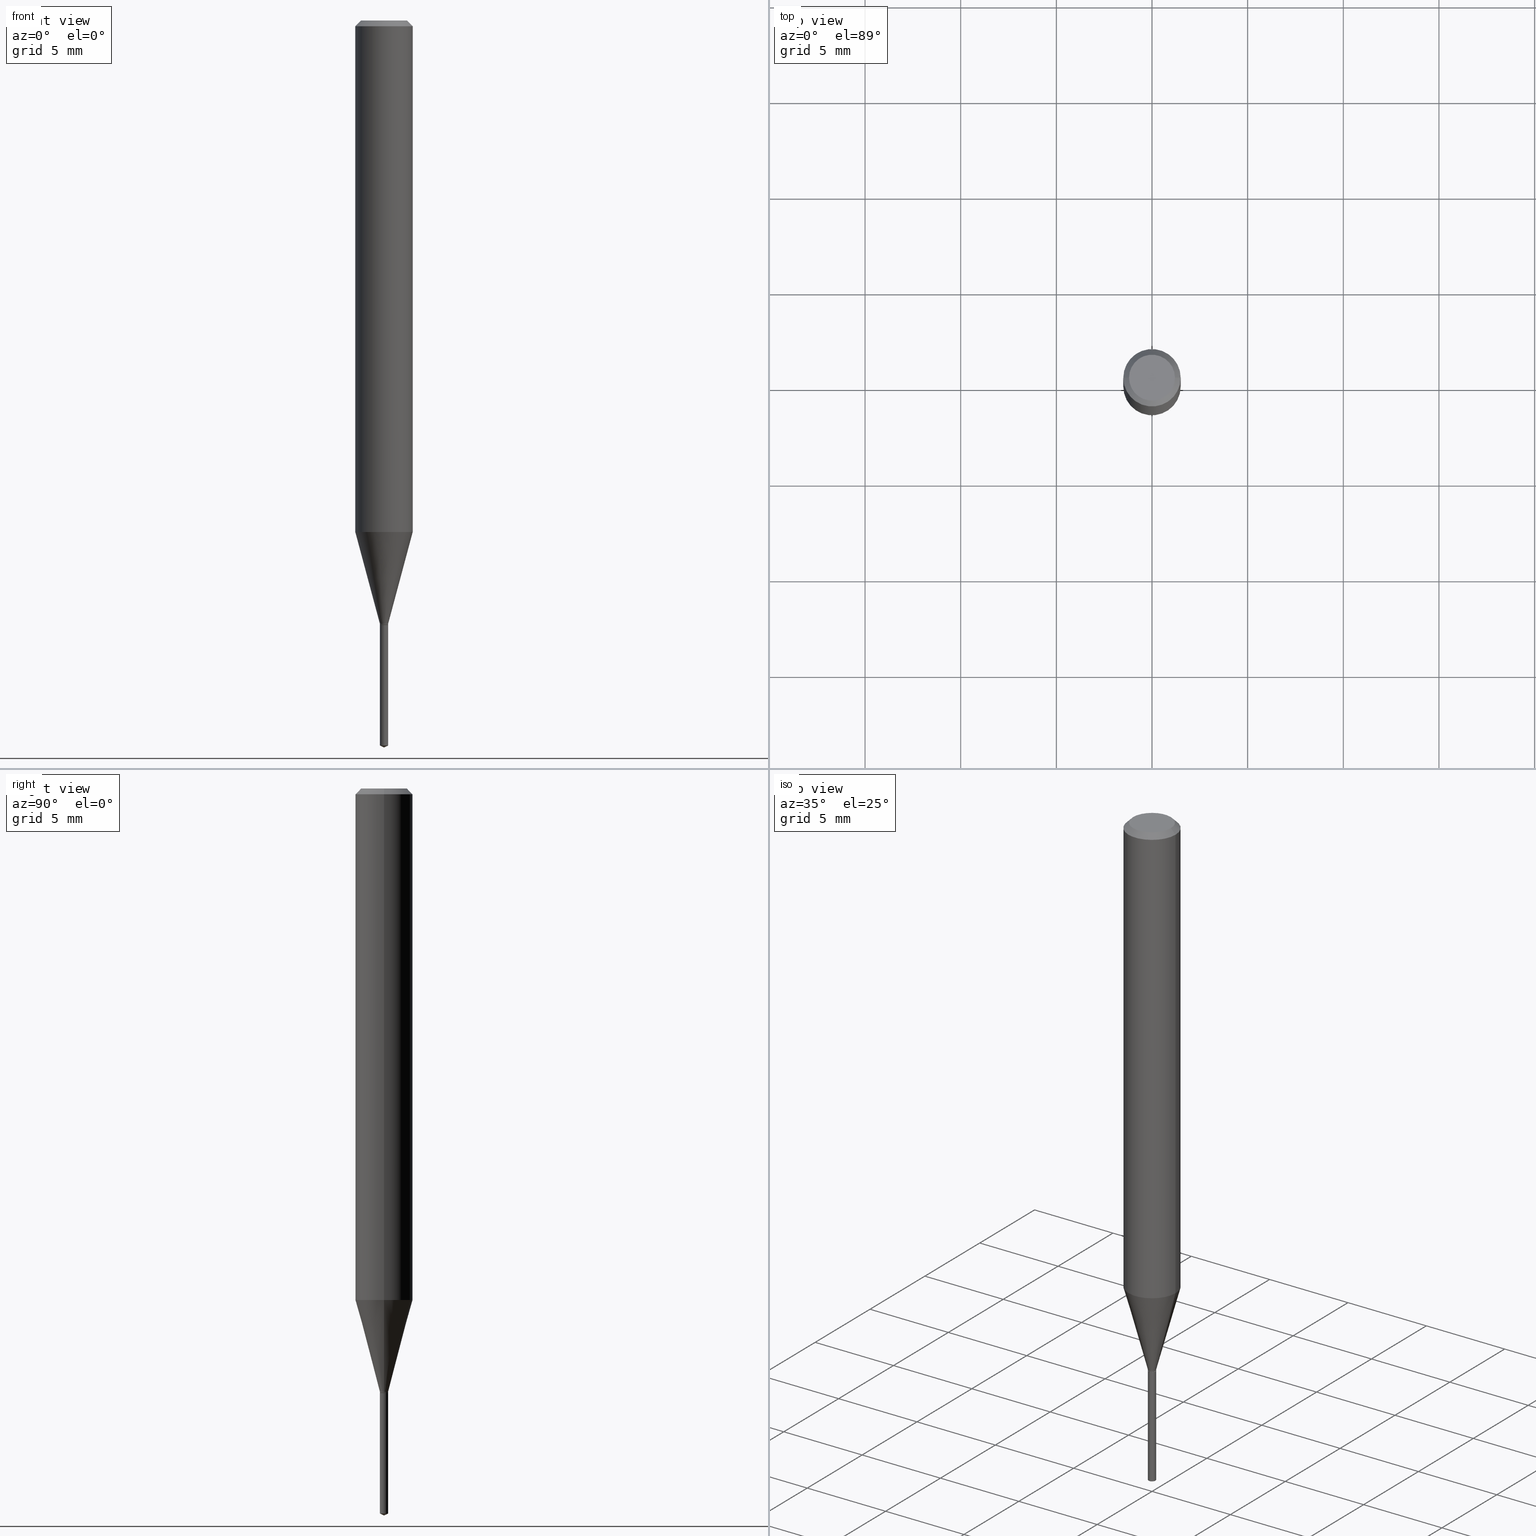
[diagram: canonical four-view strip — front | top / right | iso, engineering-drawing reading convention]
A machine part, canonical four-view strip (front | top / right | iso — engineering-drawing reading convention). The complete STEP part file that produces these views, byte-faithful:
ISO-10303-21;
HEADER;
FILE_DESCRIPTION (( 'STEP AP203' ),
    '1' );
FILE_NAME ('07418.STEP',
    '2024-04-23T21:14:15',
    ( '' ),
    ( '' ),
    'SwSTEP 2.0',
    'SolidWorks 2023',
    '' );
FILE_SCHEMA (( 'CONFIG_CONTROL_DESIGN' ));
ENDSEC;

DATA;
#1 = LINE ( 'NONE', #481, #478 ) ;
#2 = EDGE_CURVE ( 'NONE', #222, #224, #227, .T. ) ;
#3 = COORDINATED_UNIVERSAL_TIME_OFFSET ( 5, 0, .BEHIND. ) ;
#4 = LINE ( 'NONE', #89, #85 ) ;
#5 = CIRCLE ( 'NONE', #216, 0.05905000000000013710 ) ;
#6 = DIRECTION ( 'NONE',  ( 1.000000000000000000, -6.982962677686266711E-15, 0.000000000000000000 ) ) ;
#7 = DIRECTION ( 'NONE',  ( 1.000000000000000000, -6.982962677686266711E-15, 4.876176775795936353E-29 ) ) ;
#8 = EDGE_CURVE ( 'NONE', #188, #15, #1, .T. ) ;
#9 = CARTESIAN_POINT ( 'NONE',  ( 2.888098660104664204E-31, -4.123439461173780263E-17, -0.01181000000000007218 ) ) ;
#10 = AXIS2_PLACEMENT_3D ( 'NONE', #411, #74, #69 ) ;
#11 = VECTOR ( 'NONE', #360, 39.37007874015748143 ) ;
#12 = DIRECTION ( 'NONE',  ( -2.445468806185136877E-29, 3.491481338843145188E-15, 1.000000000000000000 ) ) ;
#13 = ADVANCED_FACE ( 'NONE', ( #340 ), #137, .T. ) ;
#14 = PLANE ( 'NONE',  #51 ) ;
#15 = VERTEX_POINT ( 'NONE', #193 ) ;
#16 = CARTESIAN_POINT ( 'NONE',  ( 4.132873053354867254E-48, -5.900647395337818946E-34, -1.690012582823346072E-19 ) ) ;
#17 = ORIENTED_EDGE ( 'NONE', *, *, #116, .F. ) ;
#18 = DIRECTION ( 'NONE',  ( 1.000000000000000000, -6.982962677686293532E-15, 0.000000000000000000 ) ) ;
#19 = AXIS2_PLACEMENT_3D ( 'NONE', #329, #331, #174 ) ;
#20 = VERTEX_POINT ( 'NONE', #345 ) ;
#21 = CARTESIAN_POINT ( 'NONE',  ( 3.646172489071447105E-29, -5.213939867712663588E-15, -1.492159700288590241 ) ) ;
#22 = EDGE_LOOP ( 'NONE', ( #288, #436, #323 ) ) ;
#23 = DIRECTION ( 'NONE',  ( 1.000000000000000000, -6.982962677686235156E-15, 0.000000000000000000 ) ) ;
#24 = ORIENTED_EDGE ( 'NONE', *, *, #173, .T. ) ;
#25 = ADVANCED_FACE ( 'NONE', ( #155 ), #156, .T. ) ;
#26 = DIRECTION ( 'NONE',  ( -2.433949354103485076E-29, 3.507977849870566318E-15, 1.000000000000000000 ) ) ;
#27 = AXIS2_PLACEMENT_3D ( 'NONE', #347, #456, #35 ) ;
#28 = APPROVAL_PERSON_ORGANIZATION ( #192, #204, #305 ) ;
#29 = APPROVAL ( #267, 'UNSPECIFIED' ) ;
#30 = MECHANICAL_CONTEXT ( 'NONE', #338, 'mechanical' ) ;
#31 = ORIENTED_EDGE ( 'NONE', *, *, #239, .T. ) ;
#32 = DATE_AND_TIME ( #336, #278 ) ;
#33 = FACE_OUTER_BOUND ( 'NONE', #368, .T. ) ;
#34 = DATE_TIME_ROLE ( 'creation_date' ) ;
#35 = DIRECTION ( 'NONE',  ( 6.982962677686265922E-15, 1.000000000000000000, -3.507977849870566318E-15 ) ) ;
#36 = EDGE_CURVE ( 'NONE', #247, #188, #43, .T. ) ;
#37 = CLOSED_SHELL ( 'NONE', ( #358, #254, #208, #475, #80 ) ) ;
#38 = ORIENTED_EDGE ( 'NONE', *, *, #36, .F. ) ;
#39 = PERSON ( 'UNSPECIFIED', 'UNSPECIFIED', 'UNSPECIFIED', ('UNSPECIFIED'), ('UNSPECIFIED'), ('UNSPECIFIED') ) ;
#40 = DIRECTION ( 'NONE',  ( 1.000000000000000000, -6.982962677686265922E-15, 4.876176775795935793E-29 ) ) ;
#41 = SHAPE_DEFINITION_REPRESENTATION ( #198, #243 ) ;
#42 = CARTESIAN_POINT ( 'NONE',  ( -9.216901474160064469E-28, 1.328816018163103804E-13, 37.87397874015748300 ) ) ;
#43 = CIRCLE ( 'NONE', #10, 0.008449999999999999178 ) ;
#44 = AXIS2_PLACEMENT_3D ( 'NONE', #466, #246, #367 ) ;
#45 = EDGE_CURVE ( 'NONE', #454, #296, #377, .T. ) ;
#46 = DESIGN_CONTEXT ( 'detailed design', #196, 'design' ) ;
#47 = PERSON_AND_ORGANIZATION_ROLE ( 'classification_officer' ) ;
#48 = DIRECTION ( 'NONE',  ( 1.000000000000000000, -6.982962677686266711E-15, 0.000000000000000000 ) ) ;
#49 = DIRECTION ( 'NONE',  ( 1.000000000000000000, -6.982962677686265922E-15, 4.876176775795935232E-29 ) ) ;
#50 = DIRECTION ( 'NONE',  ( -6.982962677686265922E-15, -1.000000000000000000, 0.000000000000000000 ) ) ;
#51 = AXIS2_PLACEMENT_3D ( 'NONE', #16, #399, #101 ) ;
#52 = CARTESIAN_POINT ( 'NONE',  ( 3.036294069759465269E-29, -4.335023230307649634E-15, -1.241600000000000037 ) ) ;
#53 = ADVANCED_FACE ( 'NONE', ( #307 ), #146, .T. ) ;
#54 = DIRECTION ( 'NONE',  ( -2.445468806185136597E-29, 3.491481338843145583E-15, 1.000000000000000000 ) ) ;
#55 = ORIENTED_EDGE ( 'NONE', *, *, #169, .T. ) ;
#56 = CARTESIAN_POINT ( 'NONE',  ( 3.041185007371835914E-29, -4.342006192985336437E-15, -1.243600000000000039 ) ) ;
#57 = ORIENTED_EDGE ( 'NONE', *, *, #250, .F. ) ;
#58 = PRODUCT_DEFINITION ( 'UNKNOWN', '', #419, #46 ) ;
#59 = CARTESIAN_POINT ( 'NONE',  ( 3.641431628674223535E-29, -5.248285661191353441E-15, -1.496099999999999985 ) ) ;
#60 = AXIS2_PLACEMENT_3D ( 'NONE', #163, #123, #49 ) ;
#61 = CC_DESIGN_APPROVAL ( #29, ( #58 ) ) ;
#62 = ORIENTED_EDGE ( 'NONE', *, *, #67, .T. ) ;
#63 = CARTESIAN_POINT ( 'NONE',  ( 3.042407741774928155E-29, -4.343751933654757151E-15, -1.244099999999999984 ) ) ;
#64 = ORIENTED_EDGE ( 'NONE', *, *, #465, .F. ) ;
#65 =( NAMED_UNIT ( * ) SI_UNIT ( $, .STERADIAN. ) SOLID_ANGLE_UNIT ( ) );
#66 = ORIENTED_EDGE ( 'NONE', *, *, #36, .T. ) ;
#67 = EDGE_CURVE ( 'NONE', #474, #256, #308, .T. ) ;
#68 = DIRECTION ( 'NONE',  ( -2.445468806185136877E-29, 3.491481338843145188E-15, 1.000000000000000000 ) ) ;
#69 = DIRECTION ( 'NONE',  ( 1.000000000000000000, -6.982962677686293532E-15, 0.000000000000000000 ) ) ;
#70 = AXIS2_PLACEMENT_3D ( 'NONE', #476, #322, #176 ) ;
#71 =( LENGTH_UNIT ( ) NAMED_UNIT ( * ) SI_UNIT ( $, .METRE. ) );
#72 = ORIENTED_EDGE ( 'NONE', *, *, #119, .F. ) ;
#73 = COORDINATED_UNIVERSAL_TIME_OFFSET ( 5, 0, .BEHIND. ) ;
#74 = DIRECTION ( 'NONE',  ( -2.445468806185136597E-29, 3.491481338843145583E-15, 1.000000000000000000 ) ) ;
#75 = EDGE_CURVE ( 'NONE', #429, #15, #342, .T. ) ;
#76 = FACE_OUTER_BOUND ( 'NONE', #93, .T. ) ;
#77 = AXIS2_PLACEMENT_3D ( 'NONE', #260, #229, #268 ) ;
#78 = CIRCLE ( 'NONE', #440, 0.05904999999999999832 ) ;
#79 = DIRECTION ( 'NONE',  ( -6.982962677686265922E-15, -1.000000000000000000, 0.000000000000000000 ) ) ;
#80 = ADVANCED_FACE ( 'NONE', ( #76 ), #452, .F. ) ;
#81 = DIRECTION ( 'NONE',  ( -2.433949354103485076E-29, 3.507977849870565923E-15, 1.000000000000000000 ) ) ;
#82 = EDGE_CURVE ( 'NONE', #256, #321, #264, .T. ) ;
#83 = APPROVAL_DATE_TIME ( #235, #274 ) ;
#84 = DIRECTION ( 'NONE',  ( -2.445468806185136597E-29, 3.491481338843145583E-15, 1.000000000000000000 ) ) ;
#85 = VECTOR ( 'NONE', #421, 39.37007874015748143 ) ;
#86 = CIRCLE ( 'NONE', #201, 0.04724000000000000421 ) ;
#87 = CARTESIAN_POINT ( 'NONE',  ( 3.041185007371835914E-29, -4.342006192985336437E-15, -1.243600000000000039 ) ) ;
#88 = EDGE_CURVE ( 'NONE', #406, #224, #94, .T. ) ;
#89 = CARTESIAN_POINT ( 'NONE',  ( 6.004086117175889264E-17, 0.008449999999995657166, -1.244099999999999984 ) ) ;
#90 = ORIENTED_EDGE ( 'NONE', *, *, #465, .T. ) ;
#91 = CARTESIAN_POINT ( 'NONE',  ( 0.05904999999999999832, -4.535783407291118600E-16, -0.01181000000000007218 ) ) ;
#92 = ADVANCED_FACE ( 'NONE', ( #33 ), #202, .T. ) ;
#93 = EDGE_LOOP ( 'NONE', ( #397, #488 ) ) ;
#94 = CIRCLE ( 'NONE', #164, 0.008449999999999999178 ) ;
#95 = VECTOR ( 'NONE', #282, 39.37007874015748143 ) ;
#96 = DIRECTION ( 'NONE',  ( -2.445468806185136597E-29, 3.491481338843145583E-15, 1.000000000000000000 ) ) ;
#97 = ORIENTED_EDGE ( 'NONE', *, *, #116, .T. ) ;
#98 = CARTESIAN_POINT ( 'NONE',  ( 8.265746106709734507E-48, -1.180129479067563789E-33, -3.380025165646692144E-19 ) ) ;
#99 = ORIENTED_EDGE ( 'NONE', *, *, #415, .F. ) ;
#100 = ADVANCED_FACE ( 'NONE', ( #428 ), #310, .F. ) ;
#101 = DIRECTION ( 'NONE',  ( -1.000000000000000000, 6.982962677686265922E-15, -4.876176775795935793E-29 ) ) ;
#102 = ORIENTED_EDGE ( 'NONE', *, *, #258, .F. ) ;
#103 = AXIS2_PLACEMENT_3D ( 'NONE', #153, #335, #418 ) ;
#104 = DIRECTION ( 'NONE',  ( -2.445468806185136597E-29, 3.491481338843145583E-15, 1.000000000000000000 ) ) ;
#105 = VECTOR ( 'NONE', #206, 39.37007874015748143 ) ;
#106 = ORIENTED_EDGE ( 'NONE', *, *, #489, .T. ) ;
#107 = CC_DESIGN_PERSON_AND_ORGANIZATION_ASSIGNMENT ( #240, #47, ( #181 ) ) ;
#108 = ORIENTED_EDGE ( 'NONE', *, *, #398, .T. ) ;
#109 =( CONVERSION_BASED_UNIT ( 'INCH', #445 ) LENGTH_UNIT ( ) NAMED_UNIT ( #172 ) );
#110 = DIRECTION ( 'NONE',  ( -0.2588190451025211836, 5.211531920934547886E-15, 0.9659258262890679791 ) ) ;
#111 = DIRECTION ( 'NONE',  ( 1.000000000000000000, -6.982962677686264344E-15, 0.000000000000000000 ) ) ;
#112 = AXIS2_PLACEMENT_3D ( 'NONE', #118, #197, #190 ) ;
#113 = AXIS2_PLACEMENT_3D ( 'NONE', #433, #54, #244 ) ;
#114 = PERSON_AND_ORGANIZATION_ROLE ( 'creator' ) ;
#115 = ORIENTED_EDGE ( 'NONE', *, *, #162, .F. ) ;
#116 = EDGE_CURVE ( 'NONE', #15, #296, #166, .T. ) ;
#117 = CALENDAR_DATE ( 2024, 23, 4 ) ;
#118 = CARTESIAN_POINT ( 'NONE',  ( 3.042407741774928155E-29, -4.343751933654757151E-15, -1.244099999999999984 ) ) ;
#119 = EDGE_CURVE ( 'NONE', #321, #188, #276, .T. ) ;
#120 = CARTESIAN_POINT ( 'NONE',  ( -5.900603462641853257E-17, -0.008450000000004344661, -1.244099999999999984 ) ) ;
#121 = CONICAL_SURFACE ( 'NONE', #113, 0.007949999999999998734, 0.7853981633975496424 ) ;
#122 = CALENDAR_DATE ( 2024, 23, 4 ) ;
#123 = DIRECTION ( 'NONE',  ( -2.445468806185136597E-29, 3.491481338843145583E-15, 1.000000000000000000 ) ) ;
#124 = EDGE_CURVE ( 'NONE', #454, #20, #237, .T. ) ;
#125 = DATE_TIME_ROLE ( 'classification_date' ) ;
#126 = CARTESIAN_POINT ( 'NONE',  ( 3.042407741774928155E-29, -4.343751933654757151E-15, -1.244099999999999984 ) ) ;
#127 = CARTESIAN_POINT ( 'NONE',  ( -0.008449999999999999178, 6.004086117172845987E-17, -4.156500151265395353E-31 ) ) ;
#128 = CIRCLE ( 'NONE', #341, 0.008449999999999999178 ) ;
#129 = EDGE_CURVE ( 'NONE', #266, #406, #4, .T. ) ;
#130 = AXIS2_PLACEMENT_3D ( 'NONE', #126, #84, #236 ) ;
#131 = FACE_OUTER_BOUND ( 'NONE', #22, .T. ) ;
#132 = ORIENTED_EDGE ( 'NONE', *, *, #346, .T. ) ;
#133 = CARTESIAN_POINT ( 'NONE',  ( 0.008449999999999999178, -5.900603462644894069E-17, 4.120369375547564925E-31 ) ) ;
#134 = UNCERTAINTY_MEASURE_WITH_UNIT (LENGTH_MEASURE( 1.000000000000000082E-05 ), #109, 'distance_accuracy_value', 'NONE');
#135 = DIRECTION ( 'NONE',  ( -2.433949354103485076E-29, 3.507977849870565923E-15, 1.000000000000000000 ) ) ;
#136 = EDGE_LOOP ( 'NONE', ( #382, #102 ) ) ;
#137 = CONICAL_SURFACE ( 'NONE', #77, 0.05904999999999999832, 0.7853981633974452814 ) ;
#138 = AXIS2_PLACEMENT_3D ( 'NONE', #42, #427, #242 ) ;
#139 = DIRECTION ( 'NONE',  ( -2.445468806185136597E-29, 3.491481338843145583E-15, 1.000000000000000000 ) ) ;
#140 = LOCAL_TIME ( 17, 14, 15.00000000000000000, #453 ) ;
#141 = ORIENTED_EDGE ( 'NONE', *, *, #75, .F. ) ;
#142 = DIRECTION ( 'NONE',  ( 1.000000000000000000, -6.982962677686291165E-15, 0.000000000000000000 ) ) ;
#143 = EDGE_LOOP ( 'NONE', ( #66, #249, #141, #149 ) ) ;
#144 = DIRECTION ( 'NONE',  ( 0.2588190451025211836, 1.565188264969622559E-15, 0.9659258262890679791 ) ) ;
#145 = ORIENTED_EDGE ( 'NONE', *, *, #309, .T. ) ;
#146 = CONICAL_SURFACE ( 'NONE', #457, 0.05904999999999999832, 0.7853981633974452814 ) ;
#147 = CARTESIAN_POINT ( 'NONE',  ( 6.004086117176498166E-17, 0.008449999999995655431, -1.244099999999999984 ) ) ;
#148 = AXIS2_PLACEMENT_3D ( 'NONE', #371, #480, #265 ) ;
#149 = ORIENTED_EDGE ( 'NONE', *, *, #447, .F. ) ;
#150 = ADVANCED_FACE ( 'NONE', ( #391 ), #280, .T. ) ;
#151 = CARTESIAN_POINT ( 'NONE',  ( 2.888098660104664204E-31, -4.123439461173780263E-17, -0.01181000000000007218 ) ) ;
#152 = DIRECTION ( 'NONE',  ( 0.7071067811866191821, -2.468850131083007662E-15, 0.7071067811864758523 ) ) ;
#153 = CARTESIAN_POINT ( 'NONE',  ( 3.036294069759465269E-29, -4.335023230307649634E-15, -1.241600000000000037 ) ) ;
#154 = CARTESIAN_POINT ( 'NONE',  ( 0.007949999999999998734, -4.399266486942363332E-15, -1.244099999999999984 ) ) ;
#155 = FACE_OUTER_BOUND ( 'NONE', #143, .T. ) ;
#156 = CONICAL_SURFACE ( 'NONE', #103, 0.008449999999999999178, 0.2617993877991499074 ) ;
#157 = EDGE_CURVE ( 'NONE', #299, #266, #199, .T. ) ;
#158 = FACE_OUTER_BOUND ( 'NONE', #330, .T. ) ;
#159 = ORIENTED_EDGE ( 'NONE', *, *, #291, .F. ) ;
#160 = PERSON_AND_ORGANIZATION ( #39, #326 ) ;
#161 = EDGE_LOOP ( 'NONE', ( #245, #325, #409, #213 ) ) ;
#162 = EDGE_CURVE ( 'NONE', #177, #321, #128, .T. ) ;
#163 = CARTESIAN_POINT ( 'NONE',  ( 0.000000000000000000, 0.000000000000000000, 0.000000000000000000 ) ) ;
#164 = AXIS2_PLACEMENT_3D ( 'NONE', #375, #420, #79 ) ;
#165 = CARTESIAN_POINT ( 'NONE',  ( -9.216901474160064469E-28, 1.328816018163103804E-13, 37.87397874015748300 ) ) ;
#166 = LINE ( 'NONE', #352, #319 ) ;
#167 = SECURITY_CLASSIFICATION_LEVEL ( 'unclassified' ) ;
#168 = CARTESIAN_POINT ( 'NONE',  ( 0.000000000000000000, 0.000000000000000000, 0.000000000000000000 ) ) ;
#169 = EDGE_CURVE ( 'NONE', #20, #328, #203, .T. ) ;
#170 = AXIS2_PLACEMENT_3D ( 'NONE', #21, #135, #255 ) ;
#171 = CARTESIAN_POINT ( 'NONE',  ( -5.900603462641251750E-17, -0.008450000000005218961, -1.492159700288590241 ) ) ;
#172 = DIMENSIONAL_EXPONENTS ( 1.000000000000000000, 0.000000000000000000, 0.000000000000000000, 0.000000000000000000, 0.000000000000000000, 0.000000000000000000, 0.000000000000000000 ) ;
#173 = EDGE_CURVE ( 'NONE', #328, #296, #78, .T. ) ;
#174 = DIRECTION ( 'NONE',  ( 1.000000000000000000, -6.982962677686265922E-15, 4.876176775795935232E-29 ) ) ;
#175 = ORIENTED_EDGE ( 'NONE', *, *, #489, .F. ) ;
#176 = DIRECTION ( 'NONE',  ( 1.000000000000000000, -6.982962677686266711E-15, 4.876176775795936353E-29 ) ) ;
#177 = VERTEX_POINT ( 'NONE', #459 ) ;
#178 = AXIS2_PLACEMENT_3D ( 'NONE', #355, #350, #40 ) ;
#179 = CIRCLE ( 'NONE', #44, 0.008449999999999999178 ) ;
#180 = CARTESIAN_POINT ( 'NONE',  ( 3.042407741774928155E-29, -4.343751933654757151E-15, -1.244099999999999984 ) ) ;
#181 = SECURITY_CLASSIFICATION ( '', '', #167 ) ;
#182 = EDGE_LOOP ( 'NONE', ( #62, #357, #115, #175 ) ) ;
#183 = DIRECTION ( 'NONE',  ( 1.000000000000000000, -6.982962677686264344E-15, 0.000000000000000000 ) ) ;
#184 = ORIENTED_EDGE ( 'NONE', *, *, #45, .F. ) ;
#185 = LINE ( 'NONE', #59, #11 ) ;
#186 = EDGE_LOOP ( 'NONE', ( #434, #293, #106, #283 ) ) ;
#187 = APPROVAL_ROLE ( '' ) ;
#188 = VERTEX_POINT ( 'NONE', #463 ) ;
#189 = PERSON_AND_ORGANIZATION ( #39, #326 ) ;
#190 = DIRECTION ( 'NONE',  ( 1.000000000000000000, -6.982962677686291165E-15, 0.000000000000000000 ) ) ;
#191 = ORIENTED_EDGE ( 'NONE', *, *, #88, .F. ) ;
#192 = PERSON_AND_ORGANIZATION ( #39, #326 ) ;
#193 = CARTESIAN_POINT ( 'NONE',  ( -0.05905000000000013710, -3.256110225879102579E-15, -1.052758229137014556 ) ) ;
#194 = VECTOR ( 'NONE', #144, 39.37007874015748854 ) ;
#195 = LOCAL_TIME ( 17, 14, 15.00000000000000000, #3 ) ;
#196 = APPLICATION_CONTEXT ( 'configuration controlled 3d designs of mechanical parts and assemblies' ) ;
#197 = DIRECTION ( 'NONE',  ( -2.445468806185136597E-29, 3.491481338843145583E-15, 1.000000000000000000 ) ) ;
#198 = PRODUCT_DEFINITION_SHAPE ( 'NONE', 'NONE',  #58 ) ;
#199 = LINE ( 'NONE', #315, #486 ) ;
#200 = CARTESIAN_POINT ( 'NONE',  ( 2.888098660104664204E-31, -4.123439461173780263E-17, -0.01181000000000007218 ) ) ;
#201 = AXIS2_PLACEMENT_3D ( 'NONE', #98, #96, #359 ) ;
#202 = CYLINDRICAL_SURFACE ( 'NONE', #60, 0.008449999999999999178 ) ;
#203 = LINE ( 'NONE', #353, #105 ) ;
#204 = APPROVAL ( #487, 'UNSPECIFIED' ) ;
#205 = CALENDAR_DATE ( 2024, 23, 4 ) ;
#206 = DIRECTION ( 'NONE',  ( 0.7071067811865453523, -7.319954787623248157E-15, -0.7071067811865496822 ) ) ;
#207 = EDGE_LOOP ( 'NONE', ( #159, #55, #24, #184 ) ) ;
#208 = ADVANCED_FACE ( 'NONE', ( #131 ), #379, .T. ) ;
#209 = AXIS2_PLACEMENT_3D ( 'NONE', #392, #81, #50 ) ;
#210 = CYLINDRICAL_SURFACE ( 'NONE', #70, 0.05905000000000006771 ) ;
#211 = EDGE_CURVE ( 'NONE', #222, #266, #479, .T. ) ;
#212 = FACE_OUTER_BOUND ( 'NONE', #442, .T. ) ;
#213 = ORIENTED_EDGE ( 'NONE', *, *, #2, .F. ) ;
#214 = CYLINDRICAL_SURFACE ( 'NONE', #19, 0.008449999999999999178 ) ;
#215 = EDGE_LOOP ( 'NONE', ( #439, #97, #372, #64 ) ) ;
#216 = AXIS2_PLACEMENT_3D ( 'NONE', #468, #104, #183 ) ;
#217 = DIRECTION ( 'NONE',  ( -2.445468806185136597E-29, 3.491481338843145583E-15, 1.000000000000000000 ) ) ;
#218 = ORIENTED_EDGE ( 'NONE', *, *, #169, .F. ) ;
#219 = CARTESIAN_POINT ( 'NONE',  ( -0.008449999999999999178, -4.278473850474763688E-15, -1.243600000000000039 ) ) ;
#220 = ORIENTED_EDGE ( 'NONE', *, *, #119, .T. ) ;
#221 = CARTESIAN_POINT ( 'NONE',  ( 0.05905000000000006771, -4.123439461173745257E-16, 2.879382386107503723E-30 ) ) ;
#222 = VERTEX_POINT ( 'NONE', #171 ) ;
#223 = CIRCLE ( 'NONE', #130, 0.007949999999999998734 ) ;
#224 = VERTEX_POINT ( 'NONE', #320 ) ;
#225 = DIRECTION ( 'NONE',  ( -0.7071067811865453523, 2.468850131082234184E-15, -0.7071067811865496822 ) ) ;
#226 = CARTESIAN_POINT ( 'NONE',  ( 3.042407741774928155E-29, -4.343751933654757151E-15, -1.244099999999999984 ) ) ;
#227 = LINE ( 'NONE', #120, #469 ) ;
#228 = LINE ( 'NONE', #221, #395 ) ;
#229 = DIRECTION ( 'NONE',  ( 2.445468806185136597E-29, -3.491481338843145583E-15, -1.000000000000000000 ) ) ;
#230 = CIRCLE ( 'NONE', #404, 0.008449999999999999178 ) ;
#231 = APPROVAL_PERSON_ORGANIZATION ( #384, #274, #314 ) ;
#232 = DATE_AND_TIME ( #122, #450 ) ;
#233 = CARTESIAN_POINT ( 'NONE',  ( 0.008449999999999999178, -4.394029264934098821E-15, -1.241600000000000037 ) ) ;
#234 = DIRECTION ( 'NONE',  ( -2.445468806185136877E-29, 3.491481338843145188E-15, 1.000000000000000000 ) ) ;
#235 = DATE_AND_TIME ( #205, #195 ) ;
#236 = DIRECTION ( 'NONE',  ( 1.000000000000000000, -6.982962677686291165E-15, 0.000000000000000000 ) ) ;
#237 = CIRCLE ( 'NONE', #301, 0.04724000000000000421 ) ;
#238 =( GEOMETRIC_REPRESENTATION_CONTEXT ( 3 ) GLOBAL_UNCERTAINTY_ASSIGNED_CONTEXT ( ( #134 ) ) GLOBAL_UNIT_ASSIGNED_CONTEXT ( ( #109, #259, #65 ) ) REPRESENTATION_CONTEXT ( 'NONE', 'WORKASPACE' ) );
#239 = EDGE_CURVE ( 'NONE', #177, #247, #464, .T. ) ;
#240 = PERSON_AND_ORGANIZATION ( #39, #326 ) ;
#241 = DIRECTION ( 'NONE',  ( 1.000000000000000000, -6.982962677686235156E-15, 0.000000000000000000 ) ) ;
#242 = DIRECTION ( 'NONE',  ( -6.982962677686268288E-15, -1.000000000000000000, 3.520397390770379323E-15 ) ) ;
#243 = ADVANCED_BREP_SHAPE_REPRESENTATION ( '07418', ( #316, #313, #148 ), #238 ) ;
#244 = DIRECTION ( 'NONE',  ( 1.000000000000000000, -6.982962677686291165E-15, 0.000000000000000000 ) ) ;
#245 = ORIENTED_EDGE ( 'NONE', *, *, #211, .T. ) ;
#246 = DIRECTION ( 'NONE',  ( -2.445468806185136597E-29, 3.491481338843145583E-15, 1.000000000000000000 ) ) ;
#247 = VERTEX_POINT ( 'NONE', #233 ) ;
#248 = FACE_OUTER_BOUND ( 'NONE', #290, .T. ) ;
#249 = ORIENTED_EDGE ( 'NONE', *, *, #8, .T. ) ;
#250 = EDGE_CURVE ( 'NONE', #296, #328, #373, .T. ) ;
#251 = FACE_OUTER_BOUND ( 'NONE', #186, .T. ) ;
#252 = ORIENTED_EDGE ( 'NONE', *, *, #157, .T. ) ;
#253 = CC_DESIGN_APPROVAL ( #204, ( #419 ) ) ;
#254 = ADVANCED_FACE ( 'NONE', ( #348 ), #431, .T. ) ;
#255 = DIRECTION ( 'NONE',  ( -6.982962677686265922E-15, -1.000000000000000000, 0.000000000000000000 ) ) ;
#256 = VERTEX_POINT ( 'NONE', #273 ) ;
#257 = ORIENTED_EDGE ( 'NONE', *, *, #162, .T. ) ;
#258 = EDGE_CURVE ( 'NONE', #256, #474, #223, .T. ) ;
#259 =( NAMED_UNIT ( * ) PLANE_ANGLE_UNIT ( ) SI_UNIT ( $, .RADIAN. ) );
#260 = CARTESIAN_POINT ( 'NONE',  ( 2.888098660104664204E-31, -4.123439461173780263E-17, -0.01181000000000007218 ) ) ;
#261 = ADVANCED_FACE ( 'NONE', ( #295 ), #14, .F. ) ;
#262 = CARTESIAN_POINT ( 'NONE',  ( 0.007949999999999998734, -4.399266486942363332E-15, -1.244099999999999984 ) ) ;
#263 = AXIS2_PLACEMENT_3D ( 'NONE', #180, #327, #142 ) ;
#264 = LINE ( 'NONE', #446, #365 ) ;
#265 = DIRECTION ( 'NONE',  ( 1.000000000000000000, 0.000000000000000000, 0.000000000000000000 ) ) ;
#266 = VERTEX_POINT ( 'NONE', #324 ) ;
#267 = APPROVAL_STATUS ( 'not_yet_approved' ) ;
#268 = DIRECTION ( 'NONE',  ( -1.000000000000000000, 6.982962677686266711E-15, 0.000000000000000000 ) ) ;
#269 = DIRECTION ( 'NONE',  ( -0.7071067811866191821, 7.493145998870612907E-15, 0.7071067811864758523 ) ) ;
#270 = CIRCLE ( 'NONE', #170, 0.008450000000000002648 ) ;
#271 = CARTESIAN_POINT ( 'NONE',  ( 8.265746106709734507E-48, -1.180129479067563789E-33, -3.380025165646692144E-19 ) ) ;
#272 = APPROVAL_STATUS ( 'not_yet_approved' ) ;
#273 = CARTESIAN_POINT ( 'NONE',  ( -0.007949999999999998734, -4.284614558987718685E-15, -1.244099999999999984 ) ) ;
#274 = APPROVAL ( #272, 'UNSPECIFIED' ) ;
#275 = PERSON_AND_ORGANIZATION_ROLE ( 'design_supplier' ) ;
#276 = LINE ( 'NONE', #127, #448 ) ;
#277 = AXIS2_PLACEMENT_3D ( 'NONE', #168, #389, #7 ) ;
#278 = LOCAL_TIME ( 17, 14, 15.00000000000000000, #484 ) ;
#279 = CC_DESIGN_SECURITY_CLASSIFICATION ( #181, ( #419 ) ) ;
#280 = CYLINDRICAL_SURFACE ( 'NONE', #277, 0.05905000000000006771 ) ;
#281 = ORIENTED_EDGE ( 'NONE', *, *, #45, .T. ) ;
#282 = DIRECTION ( 'NONE',  ( -2.445468806185136877E-29, 3.491481338843145188E-15, 1.000000000000000000 ) ) ;
#283 = ORIENTED_EDGE ( 'NONE', *, *, #398, .F. ) ;
#284 = CARTESIAN_POINT ( 'NONE',  ( -0.04724000000000000421, 3.504923541997677355E-16, -3.380025165670481712E-19 ) ) ;
#285 = EDGE_LOOP ( 'NONE', ( #470, #132, #467, #477 ) ) ;
#286 = CIRCLE ( 'NONE', #403, 0.008449999999999999178 ) ;
#287 = FACE_OUTER_BOUND ( 'NONE', #182, .T. ) ;
#288 = ORIENTED_EDGE ( 'NONE', *, *, #157, .F. ) ;
#289 = CARTESIAN_POINT ( 'NONE',  ( -0.05904999999999999832, -1.438884567512250013E-15, -0.01181000000000007218 ) ) ;
#290 = EDGE_LOOP ( 'NONE', ( #72, #108, #31, #370 ) ) ;
#291 = EDGE_CURVE ( 'NONE', #20, #454, #86, .T. ) ;
#292 = CARTESIAN_POINT ( 'NONE',  ( 0.008449999999999999178, -4.394029264934098821E-15, -1.241600000000000037 ) ) ;
#293 = ORIENTED_EDGE ( 'NONE', *, *, #258, .T. ) ;
#294 = CONICAL_SURFACE ( 'NONE', #412, 0.008449999999999999178, 0.2617993877991499074 ) ;
#295 = FACE_OUTER_BOUND ( 'NONE', #483, .T. ) ;
#296 = VERTEX_POINT ( 'NONE', #289 ) ;
#297 = APPLICATION_PROTOCOL_DEFINITION ( 'international standard', 'config_control_design', 1994, #196 ) ;
#298 = PRODUCT_RELATED_PRODUCT_CATEGORY ( 'detail', '', ( #344 ) ) ;
#299 = VERTEX_POINT ( 'NONE', #405 ) ;
#300 = DIRECTION ( 'NONE',  ( -2.445468806185136597E-29, 3.491481338843145583E-15, 1.000000000000000000 ) ) ;
#301 = AXIS2_PLACEMENT_3D ( 'NONE', #271, #425, #423 ) ;
#302 = APPROVAL_DATE_TIME ( #32, #29 ) ;
#303 = APPROVAL_PERSON_ORGANIZATION ( #189, #29, #187 ) ;
#304 = DIRECTION ( 'NONE',  ( -1.000000000000000000, 6.982962677686266711E-15, 0.000000000000000000 ) ) ;
#305 = APPROVAL_ROLE ( '' ) ;
#306 = CARTESIAN_POINT ( 'NONE',  ( -0.05904999999999999832, 3.711095515056362547E-16, -0.01181000000000007218 ) ) ;
#307 = FACE_OUTER_BOUND ( 'NONE', #361, .T. ) ;
#308 = CIRCLE ( 'NONE', #112, 0.007949999999999998734 ) ;
#309 = EDGE_CURVE ( 'NONE', #15, #429, #5, .T. ) ;
#310 = PLANE ( 'NONE',  #178 ) ;
#311 = AXIS2_PLACEMENT_3D ( 'NONE', #165, #312, #460 ) ;
#312 = DIRECTION ( 'NONE',  ( -2.433949354103485076E-29, 3.507977849870565923E-15, 1.000000000000000000 ) ) ;
#313 = MANIFOLD_SOLID_BREP ( 'Body-Move/Copy2[2]', #349 ) ;
#314 = APPROVAL_ROLE ( '' ) ;
#315 = CARTESIAN_POINT ( 'NONE',  ( 3.670345667395058439E-29, -5.207239042452925869E-15, -1.496099999999999985 ) ) ;
#316 = MANIFOLD_SOLID_BREP ( 'Body-Move/Copy2[1]', #37 ) ;
#317 = PERSON_AND_ORGANIZATION ( #39, #326 ) ;
#318 = DIRECTION ( 'NONE',  ( -2.445468806185136597E-29, 3.491481338843145583E-15, 1.000000000000000000 ) ) ;
#319 = VECTOR ( 'NONE', #234, 39.37007874015748143 ) ;
#320 = CARTESIAN_POINT ( 'NONE',  ( -5.900603462641852024E-17, -0.008450000000004342926, -1.244099999999999984 ) ) ;
#321 = VERTEX_POINT ( 'NONE', #219 ) ;
#322 = DIRECTION ( 'NONE',  ( -2.445468806185136597E-29, 3.491481338843145583E-15, 1.000000000000000000 ) ) ;
#323 = ORIENTED_EDGE ( 'NONE', *, *, #354, .F. ) ;
#324 = CARTESIAN_POINT ( 'NONE',  ( 6.004086117176495701E-17, 0.008449999999994789804, -1.492159700288590241 ) ) ;
#325 = ORIENTED_EDGE ( 'NONE', *, *, #129, .T. ) ;
#326 = ORGANIZATION ( 'UNSPECIFIED', 'UNSPECIFIED', '' ) ;
#327 = DIRECTION ( 'NONE',  ( -2.445468806185136597E-29, 3.491481338843145583E-15, 1.000000000000000000 ) ) ;
#328 = VERTEX_POINT ( 'NONE', #91 ) ;
#329 = CARTESIAN_POINT ( 'NONE',  ( 0.000000000000000000, 0.000000000000000000, 0.000000000000000000 ) ) ;
#330 = EDGE_LOOP ( 'NONE', ( #332, #472, #444, #191 ) ) ;
#331 = DIRECTION ( 'NONE',  ( -2.445468806185136597E-29, 3.491481338843145583E-15, 1.000000000000000000 ) ) ;
#332 = ORIENTED_EDGE ( 'NONE', *, *, #129, .F. ) ;
#333 = CC_DESIGN_DATE_AND_TIME_ASSIGNMENT ( #407, #34, ( #58 ) ) ;
#334 = LINE ( 'NONE', #262, #351 ) ;
#335 = DIRECTION ( 'NONE',  ( -2.445468806185136597E-29, 3.491481338843145583E-15, 1.000000000000000000 ) ) ;
#336 = CALENDAR_DATE ( 2024, 23, 4 ) ;
#337 = CARTESIAN_POINT ( 'NONE',  ( 2.574487409809273648E-29, -3.675685711345442861E-15, -1.052758229137014556 ) ) ;
#338 = APPLICATION_CONTEXT ( 'configuration controlled 3d designs of mechanical parts and assemblies' ) ;
#339 = PERSON_AND_ORGANIZATION_ROLE ( 'design_owner' ) ;
#340 = FACE_OUTER_BOUND ( 'NONE', #207, .T. ) ;
#341 = AXIS2_PLACEMENT_3D ( 'NONE', #87, #318, #241 ) ;
#342 = CIRCLE ( 'NONE', #388, 0.05905000000000013710 ) ;
#343 = LOCAL_TIME ( 17, 14, 15.00000000000000000, #73 ) ;
#344 = PRODUCT ( '07418', '07418', '', ( #30 ) ) ;
#345 = CARTESIAN_POINT ( 'NONE',  ( 0.04724000000000000421, -3.852183633974369345E-16, -3.380025165621689721E-19 ) ) ;
#346 = EDGE_CURVE ( 'NONE', #188, #247, #179, .T. ) ;
#347 = CARTESIAN_POINT ( 'NONE',  ( 3.042407741774928155E-29, -4.343751933654757151E-15, -1.244099999999999984 ) ) ;
#348 = FACE_OUTER_BOUND ( 'NONE', #432, .T. ) ;
#349 = CLOSED_SHELL ( 'NONE', ( #424, #13, #150, #25, #92, #426, #455, #437, #53, #261, #100, #462 ) ) ;
#350 = DIRECTION ( 'NONE',  ( -2.438088387897960049E-29, 3.491481338843145188E-15, 1.000000000000000000 ) ) ;
#351 = VECTOR ( 'NONE', #152, 39.37007874015748143 ) ;
#352 = CARTESIAN_POINT ( 'NONE',  ( -0.05905000000000006771, 4.195754854663396409E-16, -2.904631170795525045E-30 ) ) ;
#353 = CARTESIAN_POINT ( 'NONE',  ( 0.05904999999999999832, -4.463468013801466955E-16, -0.01181000000000007218 ) ) ;
#354 = EDGE_CURVE ( 'NONE', #266, #222, #270, .T. ) ;
#355 = CARTESIAN_POINT ( 'NONE',  ( 3.042407741774928155E-29, -4.343751933654757151E-15, -1.244099999999999984 ) ) ;
#356 = CONICAL_SURFACE ( 'NONE', #263, 0.007949999999999998734, 0.7853981633975496424 ) ;
#357 = ORIENTED_EDGE ( 'NONE', *, *, #82, .T. ) ;
#358 = ADVANCED_FACE ( 'NONE', ( #369 ), #396, .T. ) ;
#359 = DIRECTION ( 'NONE',  ( 1.000000000000000000, -6.982962677686266711E-15, 4.876185090822587894E-29 ) ) ;
#360 = DIRECTION ( 'NONE',  ( -6.328713451373398566E-15, -0.9063077870366527122, 0.4226182617406936681 ) ) ;
#361 = EDGE_LOOP ( 'NONE', ( #218, #414, #281, #364 ) ) ;
#362 = CC_DESIGN_PERSON_AND_ORGANIZATION_ASSIGNMENT ( #317, #275, ( #419 ) ) ;
#363 = FACE_OUTER_BOUND ( 'NONE', #285, .T. ) ;
#364 = ORIENTED_EDGE ( 'NONE', *, *, #250, .T. ) ;
#365 = VECTOR ( 'NONE', #269, 39.37007874015748143 ) ;
#366 = AXIS2_PLACEMENT_3D ( 'NONE', #226, #413, #380 ) ;
#367 = DIRECTION ( 'NONE',  ( 1.000000000000000000, -6.982962677686293532E-15, 0.000000000000000000 ) ) ;
#368 = EDGE_LOOP ( 'NONE', ( #257, #220, #38, #400 ) ) ;
#369 = FACE_OUTER_BOUND ( 'NONE', #161, .T. ) ;
#370 = ORIENTED_EDGE ( 'NONE', *, *, #346, .F. ) ;
#371 = CARTESIAN_POINT ( 'NONE',  ( 0.000000000000000000, 0.000000000000000000, 0.000000000000000000 ) ) ;
#372 = ORIENTED_EDGE ( 'NONE', *, *, #173, .F. ) ;
#373 = CIRCLE ( 'NONE', #390, 0.05904999999999999832 ) ;
#374 = DIRECTION ( 'NONE',  ( 2.445468806185136597E-29, -3.491481338843145583E-15, -1.000000000000000000 ) ) ;
#375 = CARTESIAN_POINT ( 'NONE',  ( 3.042407741774928155E-29, -4.343751933654757151E-15, -1.244099999999999984 ) ) ;
#376 = CALENDAR_DATE ( 2024, 23, 4 ) ;
#377 = LINE ( 'NONE', #306, #378 ) ;
#378 = VECTOR ( 'NONE', #225, 39.37007874015748143 ) ;
#379 = CONICAL_SURFACE ( 'NONE', #138, 84.42940631927612571, 1.134464013796324000 ) ;
#380 = DIRECTION ( 'NONE',  ( -6.982962677686265922E-15, -1.000000000000000000, 0.000000000000000000 ) ) ;
#381 = CC_DESIGN_APPROVAL ( #274, ( #181 ) ) ;
#382 = ORIENTED_EDGE ( 'NONE', *, *, #67, .F. ) ;
#383 = EDGE_CURVE ( 'NONE', #224, #406, #230, .T. ) ;
#384 = PERSON_AND_ORGANIZATION ( #39, #326 ) ;
#385 = DIRECTION ( 'NONE',  ( -2.445468806185136597E-29, 3.491481338843145583E-15, 1.000000000000000000 ) ) ;
#386 = CC_DESIGN_PERSON_AND_ORGANIZATION_ASSIGNMENT ( #451, #114, ( #58 ) ) ;
#387 = DIRECTION ( 'NONE',  ( -2.445468806185136597E-29, 3.491481338843145583E-15, 1.000000000000000000 ) ) ;
#388 = AXIS2_PLACEMENT_3D ( 'NONE', #337, #300, #111 ) ;
#389 = DIRECTION ( 'NONE',  ( -2.445468806185136597E-29, 3.491481338843145583E-15, 1.000000000000000000 ) ) ;
#390 = AXIS2_PLACEMENT_3D ( 'NONE', #200, #385, #6 ) ;
#391 = FACE_OUTER_BOUND ( 'NONE', #215, .T. ) ;
#392 = CARTESIAN_POINT ( 'NONE',  ( 3.646172489071447105E-29, -5.213939867712663588E-15, -1.492159700288590241 ) ) ;
#393 = CC_DESIGN_PERSON_AND_ORGANIZATION_ASSIGNMENT ( #160, #441, ( #419 ) ) ;
#394 = CARTESIAN_POINT ( 'NONE',  ( 0.05905000000000013710, -4.088029657462817781E-15, -1.052758229137014556 ) ) ;
#395 = VECTOR ( 'NONE', #68, 39.37007874015748143 ) ;
#396 = CYLINDRICAL_SURFACE ( 'NONE', #449, 0.008450000000000000913 ) ;
#397 = ORIENTED_EDGE ( 'NONE', *, *, #383, .T. ) ;
#398 = EDGE_CURVE ( 'NONE', #321, #177, #286, .T. ) ;
#399 = DIRECTION ( 'NONE',  ( 2.438088387897960049E-29, -3.491481338843145188E-15, -1.000000000000000000 ) ) ;
#400 = ORIENTED_EDGE ( 'NONE', *, *, #239, .F. ) ;
#401 = DIRECTION ( 'NONE',  ( -6.982962677686265922E-15, -1.000000000000000000, 0.000000000000000000 ) ) ;
#402 = ORIENTED_EDGE ( 'NONE', *, *, #124, .T. ) ;
#403 = AXIS2_PLACEMENT_3D ( 'NONE', #56, #139, #23 ) ;
#404 = AXIS2_PLACEMENT_3D ( 'NONE', #63, #473, #401 ) ;
#405 = CARTESIAN_POINT ( 'NONE',  ( 3.641431628674223535E-29, -5.248285661191353441E-15, -1.496099999999999985 ) ) ;
#406 = VERTEX_POINT ( 'NONE', #147 ) ;
#407 = DATE_AND_TIME ( #376, #343 ) ;
#408 = CC_DESIGN_PERSON_AND_ORGANIZATION_ASSIGNMENT ( #410, #339, ( #344 ) ) ;
#409 = ORIENTED_EDGE ( 'NONE', *, *, #383, .F. ) ;
#410 = PERSON_AND_ORGANIZATION ( #39, #326 ) ;
#411 = CARTESIAN_POINT ( 'NONE',  ( 3.036294069759465269E-29, -4.335023230307649634E-15, -1.241600000000000037 ) ) ;
#412 = AXIS2_PLACEMENT_3D ( 'NONE', #52, #217, #18 ) ;
#413 = DIRECTION ( 'NONE',  ( -2.433949354103485076E-29, 3.507977849870565923E-15, 1.000000000000000000 ) ) ;
#414 = ORIENTED_EDGE ( 'NONE', *, *, #124, .F. ) ;
#415 = EDGE_CURVE ( 'NONE', #299, #222, #185, .T. ) ;
#416 = ORIENTED_EDGE ( 'NONE', *, *, #291, .T. ) ;
#417 = DATE_AND_TIME ( #117, #140 ) ;
#418 = DIRECTION ( 'NONE',  ( 1.000000000000000000, -6.982962677686293532E-15, 0.000000000000000000 ) ) ;
#419 = PRODUCT_DEFINITION_FORMATION_WITH_SPECIFIED_SOURCE ( 'ANY', '', #344, .NOT_KNOWN. ) ;
#420 = DIRECTION ( 'NONE',  ( -2.433949354103485076E-29, 3.507977849870565923E-15, 1.000000000000000000 ) ) ;
#421 = DIRECTION ( 'NONE',  ( -2.433949354103485076E-29, 3.507977849870566318E-15, 1.000000000000000000 ) ) ;
#422 = COORDINATED_UNIVERSAL_TIME_OFFSET ( 5, 0, .BEHIND. ) ;
#423 = DIRECTION ( 'NONE',  ( 1.000000000000000000, -6.982962677686266711E-15, 4.876185090822587894E-29 ) ) ;
#424 = ADVANCED_FACE ( 'NONE', ( #287 ), #121, .T. ) ;
#425 = DIRECTION ( 'NONE',  ( -2.445468806185136597E-29, 3.491481338843145583E-15, 1.000000000000000000 ) ) ;
#426 = ADVANCED_FACE ( 'NONE', ( #248 ), #214, .T. ) ;
#427 = DIRECTION ( 'NONE',  ( -2.433949354103485076E-29, 3.507977849870565923E-15, 1.000000000000000000 ) ) ;
#428 = FACE_OUTER_BOUND ( 'NONE', #136, .T. ) ;
#429 = VERTEX_POINT ( 'NONE', #394 ) ;
#430 = LINE ( 'NONE', #292, #194 ) ;
#431 = CONICAL_SURFACE ( 'NONE', #311, 84.42940631927612571, 1.134464013796324000 ) ;
#432 = EDGE_LOOP ( 'NONE', ( #99, #252, #485 ) ) ;
#433 = CARTESIAN_POINT ( 'NONE',  ( 3.042407741774928155E-29, -4.343751933654757151E-15, -1.244099999999999984 ) ) ;
#434 = ORIENTED_EDGE ( 'NONE', *, *, #82, .F. ) ;
#435 = DIRECTION ( 'NONE',  ( -6.982962677686265922E-15, -1.000000000000000000, 0.000000000000000000 ) ) ;
#436 = ORIENTED_EDGE ( 'NONE', *, *, #415, .T. ) ;
#437 = ADVANCED_FACE ( 'NONE', ( #212 ), #210, .T. ) ;
#438 = CARTESIAN_POINT ( 'NONE',  ( 3.042407741774928155E-29, -4.343751933654757151E-15, -1.244099999999999984 ) ) ;
#439 = ORIENTED_EDGE ( 'NONE', *, *, #75, .T. ) ;
#440 = AXIS2_PLACEMENT_3D ( 'NONE', #9, #387, #48 ) ;
#441 = PERSON_AND_ORGANIZATION_ROLE ( 'creator' ) ;
#442 = EDGE_LOOP ( 'NONE', ( #17, #145, #90, #57 ) ) ;
#443 = CYLINDRICAL_SURFACE ( 'NONE', #366, 0.008450000000000000913 ) ;
#444 = ORIENTED_EDGE ( 'NONE', *, *, #2, .T. ) ;
#445 = LENGTH_MEASURE_WITH_UNIT ( LENGTH_MEASURE( 0.02539999999999999897 ), #71 );
#446 = CARTESIAN_POINT ( 'NONE',  ( -0.007949999999999998734, -4.287263786161829886E-15, -1.244099999999999984 ) ) ;
#447 = EDGE_CURVE ( 'NONE', #247, #429, #430, .T. ) ;
#448 = VECTOR ( 'NONE', #12, 39.37007874015748143 ) ;
#449 = AXIS2_PLACEMENT_3D ( 'NONE', #438, #471, #435 ) ;
#450 = LOCAL_TIME ( 17, 14, 15.00000000000000000, #422 ) ;
#451 = PERSON_AND_ORGANIZATION ( #39, #326 ) ;
#452 = PLANE ( 'NONE',  #27 ) ;
#453 = COORDINATED_UNIVERSAL_TIME_OFFSET ( 5, 0, .BEHIND. ) ;
#454 = VERTEX_POINT ( 'NONE', #284 ) ;
#455 = ADVANCED_FACE ( 'NONE', ( #363 ), #294, .T. ) ;
#456 = DIRECTION ( 'NONE',  ( 2.433949354103484515E-29, -3.507977849870566318E-15, -1.000000000000000000 ) ) ;
#457 = AXIS2_PLACEMENT_3D ( 'NONE', #151, #374, #304 ) ;
#458 = CC_DESIGN_DATE_AND_TIME_ASSIGNMENT ( #232, #125, ( #181 ) ) ;
#459 = CARTESIAN_POINT ( 'NONE',  ( 0.008449999999999999178, -4.401012227611784835E-15, -1.243600000000000039 ) ) ;
#460 = DIRECTION ( 'NONE',  ( -6.982962677686268288E-15, -1.000000000000000000, 3.520397390770379323E-15 ) ) ;
#461 = DIRECTION ( 'NONE',  ( 6.439704144417054808E-15, 0.9063077870366555988, 0.4226182617406873954 ) ) ;
#462 = ADVANCED_FACE ( 'NONE', ( #251 ), #356, .T. ) ;
#463 = CARTESIAN_POINT ( 'NONE',  ( -0.008449999999999999178, -4.278473850474763688E-15, -1.241600000000000037 ) ) ;
#464 = LINE ( 'NONE', #133, #95 ) ;
#465 = EDGE_CURVE ( 'NONE', #429, #328, #228, .T. ) ;
#466 = CARTESIAN_POINT ( 'NONE',  ( 3.036294069759465269E-29, -4.335023230307649634E-15, -1.241600000000000037 ) ) ;
#467 = ORIENTED_EDGE ( 'NONE', *, *, #447, .T. ) ;
#468 = CARTESIAN_POINT ( 'NONE',  ( 2.574487409809273648E-29, -3.675685711345442861E-15, -1.052758229137014556 ) ) ;
#469 = VECTOR ( 'NONE', #26, 39.37007874015748143 ) ;
#470 = ORIENTED_EDGE ( 'NONE', *, *, #8, .F. ) ;
#471 = DIRECTION ( 'NONE',  ( -2.433949354103485076E-29, 3.507977849870565923E-15, 1.000000000000000000 ) ) ;
#472 = ORIENTED_EDGE ( 'NONE', *, *, #354, .T. ) ;
#473 = DIRECTION ( 'NONE',  ( -2.433949354103485076E-29, 3.507977849870565923E-15, 1.000000000000000000 ) ) ;
#474 = VERTEX_POINT ( 'NONE', #154 ) ;
#475 = ADVANCED_FACE ( 'NONE', ( #158 ), #443, .T. ) ;
#476 = CARTESIAN_POINT ( 'NONE',  ( 0.000000000000000000, 0.000000000000000000, 0.000000000000000000 ) ) ;
#477 = ORIENTED_EDGE ( 'NONE', *, *, #309, .F. ) ;
#478 = VECTOR ( 'NONE', #110, 39.37007874015748854 ) ;
#479 = CIRCLE ( 'NONE', #209, 0.008450000000000002648 ) ;
#480 = DIRECTION ( 'NONE',  ( 0.000000000000000000, 0.000000000000000000, 1.000000000000000000 ) ) ;
#481 = CARTESIAN_POINT ( 'NONE',  ( -0.008449999999999999178, -4.274982369135920681E-15, -1.241600000000000037 ) ) ;
#482 = APPLICATION_PROTOCOL_DEFINITION ( 'international standard', 'config_control_design', 1994, #338 ) ;
#483 = EDGE_LOOP ( 'NONE', ( #402, #416 ) ) ;
#484 = COORDINATED_UNIVERSAL_TIME_OFFSET ( 5, 0, .BEHIND. ) ;
#485 = ORIENTED_EDGE ( 'NONE', *, *, #211, .F. ) ;
#486 = VECTOR ( 'NONE', #461, 39.37007874015748143 ) ;
#487 = APPROVAL_STATUS ( 'not_yet_approved' ) ;
#488 = ORIENTED_EDGE ( 'NONE', *, *, #88, .T. ) ;
#489 = EDGE_CURVE ( 'NONE', #474, #177, #334, .T. ) ;
#490 = APPROVAL_DATE_TIME ( #417, #204 ) ;
ENDSEC;
END-ISO-10303-21;
